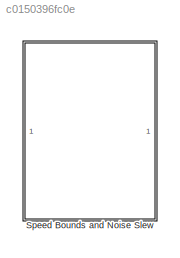
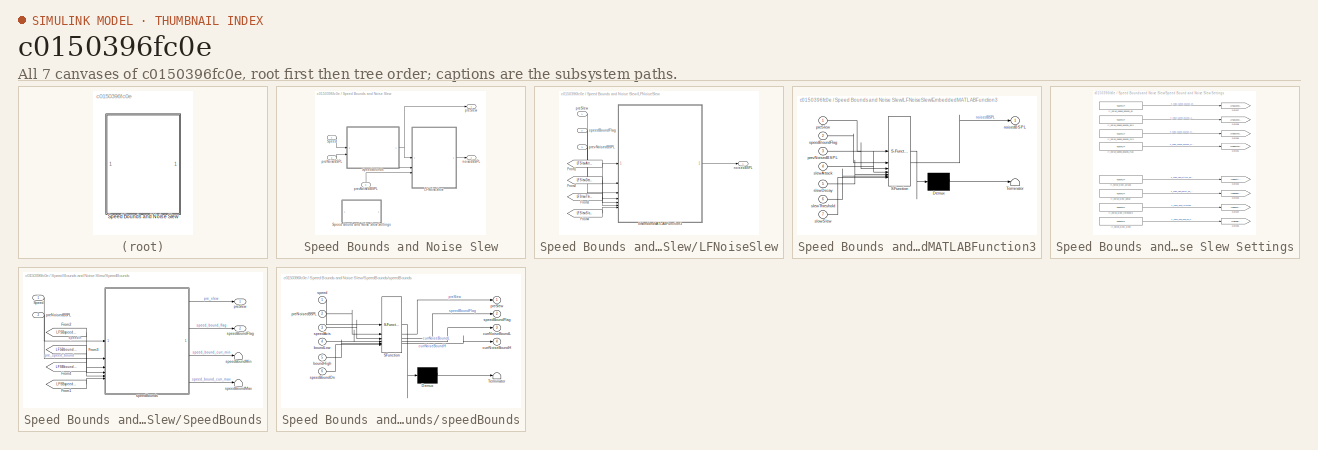
[diagram: thumbnail index - all 7 canvases of the model, root first then tree order]
MODEL slx_c0150396fc0e
KIND library
CONFIG AbsTol = auto
CONFIG EnableMultiTasking = off
CONFIG FixedStep = auto
CONFIG MaxStep = auto
CONFIG MinStep = auto
CONFIG RelTol = 1e-3
CONFIG SampleTimeConstraint = Unconstrained
CONFIG SolverName = VariableStepAuto
CONFIG StartTime = 0.0
CONFIG StopTime = 10.0
BLOCK [SubSystem] Speed Bounds and Noise Slew
BLOCK [SubSystem] Speed Bounds and Noise Slew/LFNoiseSlew
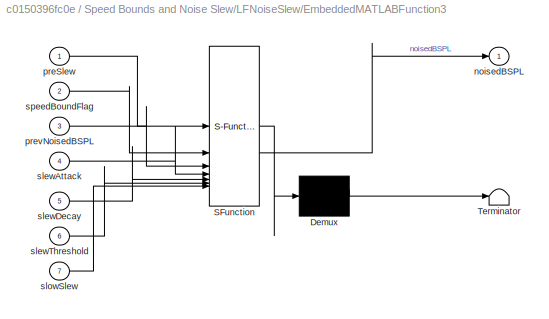
BLOCK [SubSystem] Speed Bounds and Noise Slew/LFNoiseSlew/EmbeddedMATLABFunction3
  ErrorFcn = Stateflow.Translate.translate
  NameLocation = top
  PermitHierarchicalResolution = ExplicitOnly
  SFBlockType = MATLAB Function
  TreatAsAtomicUnit = on
BLOCK [Demux] Speed Bounds and Noise Slew/LFNoiseSlew/EmbeddedMATLABFunction3/ Demux 
  Outputs = 1
BLOCK [S-Function] Speed Bounds and Noise Slew/LFNoiseSlew/EmbeddedMATLABFunction3/ SFunction 
  EnableBusSupport = off
  FunctionName = sf_sfun
  PortCounts = [7 2]
  SFcnIsStateOwnerBlock = off
  SFunctionDeploymentMode = off
  Tag = Stateflow S-Function 21
BLOCK [Terminator] Speed Bounds and Noise Slew/LFNoiseSlew/EmbeddedMATLABFunction3/ Terminator 
BLOCK [Outport] Speed Bounds and Noise Slew/LFNoiseSlew/EmbeddedMATLABFunction3/noisedBSPL
  VectorParamsAs1DForOutWhenUnconnected = off
BLOCK [Inport] Speed Bounds and Noise Slew/LFNoiseSlew/EmbeddedMATLABFunction3/preSlew
BLOCK [Inport] Speed Bounds and Noise Slew/LFNoiseSlew/EmbeddedMATLABFunction3/prevNoisedBSPL
  Port = 3
BLOCK [Inport] Speed Bounds and Noise Slew/LFNoiseSlew/EmbeddedMATLABFunction3/slewAttack
  Port = 4
BLOCK [Inport] Speed Bounds and Noise Slew/LFNoiseSlew/EmbeddedMATLABFunction3/slewDecay
  Port = 5
BLOCK [Inport] Speed Bounds and Noise Slew/LFNoiseSlew/EmbeddedMATLABFunction3/slewThreshold
  Port = 6
BLOCK [Inport] Speed Bounds and Noise Slew/LFNoiseSlew/EmbeddedMATLABFunction3/slowSlew
  Port = 7
BLOCK [Inport] Speed Bounds and Noise Slew/LFNoiseSlew/EmbeddedMATLABFunction3/speedBoundFlag
  Port = 2
BLOCK [From] Speed Bounds and Noise Slew/LFNoiseSlew/From1
  GotoTag = LFSlewAttack
  TagVisibility = global
BLOCK [From] Speed Bounds and Noise Slew/LFNoiseSlew/From2
  GotoTag = LFSlewDecay
  TagVisibility = global
BLOCK [From] Speed Bounds and Noise Slew/LFNoiseSlew/From3
  GotoTag = LFSlewThresh
  TagVisibility = global
BLOCK [From] Speed Bounds and Noise Slew/LFNoiseSlew/From4
  GotoTag = LFSlewSlowSlew
  TagVisibility = global
BLOCK [Outport] Speed Bounds and Noise Slew/LFNoiseSlew/noisedBSPL
  VectorParamsAs1DForOutWhenUnconnected = off
BLOCK [Inport] Speed Bounds and Noise Slew/LFNoiseSlew/preSlew
BLOCK [Inport] Speed Bounds and Noise Slew/LFNoiseSlew/prevNoisedBSPL
  Port = 3
BLOCK [Inport] Speed Bounds and Noise Slew/LFNoiseSlew/speedBoundFlag
  Port = 2
BLOCK [Inport] Speed Bounds and Noise Slew/Speed
BLOCK [SubSystem] Speed Bounds and Noise Slew/Speed Bound and Noise Slew Settings
BLOCK [Goto] Speed Bounds and Noise Slew/Speed Bound and Noise Slew Settings/Goto27
  GotoTag = LFSBspeedBoundOn
  TagVisibility = global
BLOCK [Goto] Speed Bounds and Noise Slew/Speed Bound and Noise Slew Settings/Goto28
  GotoTag = LFSBspeedAxis
  TagVisibility = global
BLOCK [Goto] Speed Bounds and Noise Slew/Speed Bound and Noise Slew Settings/Goto30
  GotoTag = LFSBboundLow
  TagVisibility = global
BLOCK [Goto] Speed Bounds and Noise Slew/Speed Bound and Noise Slew Settings/Goto31
  GotoTag = LFSBboundHigh
  TagVisibility = global
BLOCK [Goto] Speed Bounds and Noise Slew/Speed Bound and Noise Slew Settings/Goto32
  GotoTag = LFSlewAttack
  TagVisibility = global
BLOCK [Goto] Speed Bounds and Noise Slew/Speed Bound and Noise Slew Settings/Goto33
  GotoTag = LFSlewDecay
  TagVisibility = global
BLOCK [Goto] Speed Bounds and Noise Slew/Speed Bound and Noise Slew Settings/Goto34
  GotoTag = LFSlewThresh
  TagVisibility = global
BLOCK [Goto] Speed Bounds and Noise Slew/Speed Bound and Noise Slew Settings/Goto35
  GotoTag = LFSlewSlowSlew
  TagVisibility = global
BLOCK [Reference] Speed Bounds and Noise Slew/Speed Bound and Noise Slew Settings/lf_noise_slew_attack  REF=TuneVar/TuneTOP
  SourceBlock = TuneVar/TuneTOP
  SourceType = Bose Trivial Tune TOP
BLOCK [Reference] Speed Bounds and Noise Slew/Speed Bound and Noise Slew Settings/lf_noise_slew_decay  REF=TuneVar/TuneTOP
  SourceBlock = TuneVar/TuneTOP
  SourceType = Bose Trivial Tune TOP
BLOCK [Reference] Speed Bounds and Noise Slew/Speed Bound and Noise Slew Settings/lf_noise_slew_threshold  REF=TuneVar/TuneTOP
  SourceBlock = TuneVar/TuneTOP
  SourceType = Bose Trivial Tune TOP
BLOCK [Reference] Speed Bounds and Noise Slew/Speed Bound and Noise Slew Settings/lf_noise_slow_slew  REF=TuneVar/TuneTOP
  SourceBlock = TuneVar/TuneTOP
  SourceType = Bose Trivial Tune TOP
BLOCK [Reference] Speed Bounds and Noise Slew/Speed Bound and Noise Slew Settings/lf_noise_speed_bounds_axis  REF=TuneVar/TuneTOP
  SourceBlock = TuneVar/TuneTOP
  SourceType = Bose Trivial Tune TOP
BLOCK [Reference] Speed Bounds and Noise Slew/Speed Bound and Noise Slew Settings/lf_noise_speed_bounds_max  REF=TuneVar/TuneTOP
  SourceBlock = TuneVar/TuneTOP
  SourceType = Bose Trivial Tune TOP
BLOCK [Reference] Speed Bounds and Noise Slew/Speed Bound and Noise Slew Settings/lf_noise_speed_bounds_min  REF=TuneVar/TuneTOP
  SourceBlock = TuneVar/TuneTOP
  SourceType = Bose Trivial Tune TOP
BLOCK [Reference] Speed Bounds and Noise Slew/Speed Bound and Noise Slew Settings/lf_noise_speed_bounds_on  REF=TuneVar/TuneTOP
  SourceBlock = TuneVar/TuneTOP
  SourceType = Bose Trivial Tune TOP
BLOCK [SubSystem] Speed Bounds and Noise Slew/SpeedBounds
BLOCK [From] Speed Bounds and Noise Slew/SpeedBounds/From1
  GotoTag = LFSBspeedBoundOn
  TagVisibility = global
BLOCK [From] Speed Bounds and Noise Slew/SpeedBounds/From2
  GotoTag = LFSBspeedAxis
  TagVisibility = global
BLOCK [From] Speed Bounds and Noise Slew/SpeedBounds/From3
  GotoTag = LFSBboundLow
  TagVisibility = global
BLOCK [From] Speed Bounds and Noise Slew/SpeedBounds/From4
  GotoTag = LFSBboundHigh
  TagVisibility = global
BLOCK [Inport] Speed Bounds and Noise Slew/SpeedBounds/Speed
  NameLocation = top
BLOCK [Inport] Speed Bounds and Noise Slew/SpeedBounds/preNoisedBSPL
  NameLocation = top
  Port = 2
BLOCK [Outport] Speed Bounds and Noise Slew/SpeedBounds/preSlew
  VectorParamsAs1DForOutWhenUnconnected = off
BLOCK [Outport] Speed Bounds and Noise Slew/SpeedBounds/speedBoundFlag
  Port = 2
  VectorParamsAs1DForOutWhenUnconnected = off
BLOCK [Terminator] Speed Bounds and Noise Slew/SpeedBounds/speedBoundMax
BLOCK [Terminator] Speed Bounds and Noise Slew/SpeedBounds/speedBoundMin
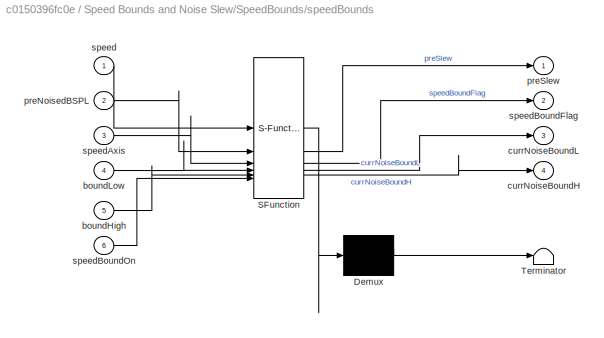
BLOCK [SubSystem] Speed Bounds and Noise Slew/SpeedBounds/speedBounds
  ErrorFcn = Stateflow.Translate.translate
  NameLocation = top
  PermitHierarchicalResolution = ExplicitOnly
  SFBlockType = MATLAB Function
  TreatAsAtomicUnit = on
BLOCK [Demux] Speed Bounds and Noise Slew/SpeedBounds/speedBounds/ Demux 
  Outputs = 1
BLOCK [S-Function] Speed Bounds and Noise Slew/SpeedBounds/speedBounds/ SFunction 
  EnableBusSupport = off
  FunctionName = sf_sfun
  PortCounts = [6 5]
  SFcnIsStateOwnerBlock = off
  SFunctionDeploymentMode = off
  Tag = Stateflow S-Function 5
BLOCK [Terminator] Speed Bounds and Noise Slew/SpeedBounds/speedBounds/ Terminator 
BLOCK [Inport] Speed Bounds and Noise Slew/SpeedBounds/speedBounds/boundHigh
  Port = 5
BLOCK [Inport] Speed Bounds and Noise Slew/SpeedBounds/speedBounds/boundLow
  Port = 4
BLOCK [Outport] Speed Bounds and Noise Slew/SpeedBounds/speedBounds/currNoiseBoundH
  Port = 4
  VectorParamsAs1DForOutWhenUnconnected = off
BLOCK [Outport] Speed Bounds and Noise Slew/SpeedBounds/speedBounds/currNoiseBoundL
  Port = 3
  VectorParamsAs1DForOutWhenUnconnected = off
BLOCK [Inport] Speed Bounds and Noise Slew/SpeedBounds/speedBounds/preNoisedBSPL
  Port = 2
BLOCK [Outport] Speed Bounds and Noise Slew/SpeedBounds/speedBounds/preSlew
  VectorParamsAs1DForOutWhenUnconnected = off
BLOCK [Inport] Speed Bounds and Noise Slew/SpeedBounds/speedBounds/speed
BLOCK [Inport] Speed Bounds and Noise Slew/SpeedBounds/speedBounds/speedAxis
  Port = 3
BLOCK [Outport] Speed Bounds and Noise Slew/SpeedBounds/speedBounds/speedBoundFlag
  Port = 2
  VectorParamsAs1DForOutWhenUnconnected = off
BLOCK [Inport] Speed Bounds and Noise Slew/SpeedBounds/speedBounds/speedBoundOn
  Port = 6
BLOCK [Outport] Speed Bounds and Noise Slew/noisedBSPL
  Port = 2
  VectorParamsAs1DForOutWhenUnconnected = off
BLOCK [Inport] Speed Bounds and Noise Slew/preNoiseBSPL
  Port = 2
BLOCK [Outport] Speed Bounds and Noise Slew/preSlew
  VectorParamsAs1DForOutWhenUnconnected = off
BLOCK [Inport] Speed Bounds and Noise Slew/prevNoisedBSPL
  NameLocation = right
  Port = 3
LINE Speed Bounds and Noise Slew/LFNoiseSlew/EmbeddedMATLABFunction3:1 -> Speed Bounds and Noise Slew/LFNoiseSlew/noisedBSPL:1
LINE Speed Bounds and Noise Slew/LFNoiseSlew/From1:1 -> Speed Bounds and Noise Slew/LFNoiseSlew/EmbeddedMATLABFunction3:4
LINE Speed Bounds and Noise Slew/LFNoiseSlew/From2:1 -> Speed Bounds and Noise Slew/LFNoiseSlew/EmbeddedMATLABFunction3:5
LINE Speed Bounds and Noise Slew/LFNoiseSlew/From3:1 -> Speed Bounds and Noise Slew/LFNoiseSlew/EmbeddedMATLABFunction3:6
LINE Speed Bounds and Noise Slew/LFNoiseSlew/From4:1 -> Speed Bounds and Noise Slew/LFNoiseSlew/EmbeddedMATLABFunction3:7
LINE Speed Bounds and Noise Slew/LFNoiseSlew/preSlew:1 -> Speed Bounds and Noise Slew/LFNoiseSlew/EmbeddedMATLABFunction3:1
LINE Speed Bounds and Noise Slew/LFNoiseSlew/prevNoisedBSPL:1 -> Speed Bounds and Noise Slew/LFNoiseSlew/EmbeddedMATLABFunction3:3
LINE Speed Bounds and Noise Slew/LFNoiseSlew/speedBoundFlag:1 -> Speed Bounds and Noise Slew/LFNoiseSlew/EmbeddedMATLABFunction3:2
LINE Speed Bounds and Noise Slew/LFNoiseSlew:1 -> Speed Bounds and Noise Slew/noisedBSPL:1
LINE Speed Bounds and Noise Slew/Speed Bound and Noise Slew Settings/lf_noise_slew_attack:1 -> Speed Bounds and Noise Slew/Speed Bound and Noise Slew Settings/Goto32:1
LINE Speed Bounds and Noise Slew/Speed Bound and Noise Slew Settings/lf_noise_slew_decay:1 -> Speed Bounds and Noise Slew/Speed Bound and Noise Slew Settings/Goto33:1
LINE Speed Bounds and Noise Slew/Speed Bound and Noise Slew Settings/lf_noise_slew_threshold:1 -> Speed Bounds and Noise Slew/Speed Bound and Noise Slew Settings/Goto34:1
LINE Speed Bounds and Noise Slew/Speed Bound and Noise Slew Settings/lf_noise_slow_slew:1 -> Speed Bounds and Noise Slew/Speed Bound and Noise Slew Settings/Goto35:1
LINE Speed Bounds and Noise Slew/Speed Bound and Noise Slew Settings/lf_noise_speed_bounds_axis:1 -> Speed Bounds and Noise Slew/Speed Bound and Noise Slew Settings/Goto28:1
LINE Speed Bounds and Noise Slew/Speed Bound and Noise Slew Settings/lf_noise_speed_bounds_max:1 -> Speed Bounds and Noise Slew/Speed Bound and Noise Slew Settings/Goto31:1
LINE Speed Bounds and Noise Slew/Speed Bound and Noise Slew Settings/lf_noise_speed_bounds_min:1 -> Speed Bounds and Noise Slew/Speed Bound and Noise Slew Settings/Goto30:1
LINE Speed Bounds and Noise Slew/Speed Bound and Noise Slew Settings/lf_noise_speed_bounds_on:1 -> Speed Bounds and Noise Slew/Speed Bound and Noise Slew Settings/Goto27:1
LINE Speed Bounds and Noise Slew/Speed:1 -> Speed Bounds and Noise Slew/SpeedBounds:1
LINE Speed Bounds and Noise Slew/SpeedBounds/From1:1 -> Speed Bounds and Noise Slew/SpeedBounds/speedBounds:6
LINE Speed Bounds and Noise Slew/SpeedBounds/From2:1 -> Speed Bounds and Noise Slew/SpeedBounds/speedBounds:3
LINE Speed Bounds and Noise Slew/SpeedBounds/From3:1 -> Speed Bounds and Noise Slew/SpeedBounds/speedBounds:4
LINE Speed Bounds and Noise Slew/SpeedBounds/From4:1 -> Speed Bounds and Noise Slew/SpeedBounds/speedBounds:5
LINE Speed Bounds and Noise Slew/SpeedBounds/Speed:1 -> Speed Bounds and Noise Slew/SpeedBounds/speedBounds:1
LINE Speed Bounds and Noise Slew/SpeedBounds/preNoisedBSPL:1 -> Speed Bounds and Noise Slew/SpeedBounds/speedBounds:2
LINE Speed Bounds and Noise Slew/SpeedBounds/speedBounds:1 -> Speed Bounds and Noise Slew/SpeedBounds/preSlew:1
LINE Speed Bounds and Noise Slew/SpeedBounds/speedBounds:2 -> Speed Bounds and Noise Slew/SpeedBounds/speedBoundFlag:1
LINE Speed Bounds and Noise Slew/SpeedBounds/speedBounds:3 -> Speed Bounds and Noise Slew/SpeedBounds/speedBoundMin:1
LINE Speed Bounds and Noise Slew/SpeedBounds/speedBounds:4 -> Speed Bounds and Noise Slew/SpeedBounds/speedBoundMax:1
NET Speed Bounds and Noise Slew/SpeedBounds:1 -> Speed Bounds and Noise Slew/LFNoiseSlew:1, Speed Bounds and Noise Slew/preSlew:1
LINE Speed Bounds and Noise Slew/SpeedBounds:2 -> Speed Bounds and Noise Slew/LFNoiseSlew:2
LINE Speed Bounds and Noise Slew/preNoiseBSPL:1 -> Speed Bounds and Noise Slew/SpeedBounds:2
LINE Speed Bounds and Noise Slew/prevNoisedBSPL:1 -> Speed Bounds and Noise Slew/LFNoiseSlew:3
note: NET lines group one-source signal fan-out (src -> all destinations, sorted); 1:1 wires keep LINE
CHART Speed Bounds and Noise Slew/SpeedBounds/speedBounds states=1 transitions=1
  STATE_LABEL 'eML_blk_kernel()'
  STATE_LABEL "SCRIPT:\nfunction [preSlew, speedBoundFlag, currNoiseBoundL, currNoiseBoundH] ...\n    = speedBounds(speed, preNoisedBSPL, ...\n        speedAxis, boundLow, boundHigh, speedBoundOn)\n% Initialize the varibales based on the speedBoundOn value\nif speedBoundOn > 0\n\tcurrNoiseBoundL = interp1(speedAxis, boundLow, speed, 'linear');\n\tcurrNoiseBoundH = interp1(speedAxis, boundHigh, speed, 'linear');\n\tpreSlew ...<+469ch>"
CHART Speed Bounds and Noise Slew/LFNoiseSlew/EmbeddedMATLABFunction3 states=1 transitions=1
  STATE_LABEL 'eML_blk_kernel()'
  STATE_LABEL 'SCRIPT:\nfunction noisedBSPL = noiseSlew(preSlew, speedBoundFlag, prevNoisedBSPL, ...\n\tslewAttack, slewDecay, slewThreshold, slowSlew)\n\t\npersistent prevChange prevDelta;\nif isempty(prevChange); prevChange = single(0);  end\nif isempty(prevDelta); prevDelta = single(0);  end\n\ndelta = preSlew - prevNoisedBSPL;\n\nif delta > 0                              % setup for positive delta\n\tchange = min(slewAtta...<+981ch>'
CHART  states=0 transitions=0
CHART  states=0 transitions=0
